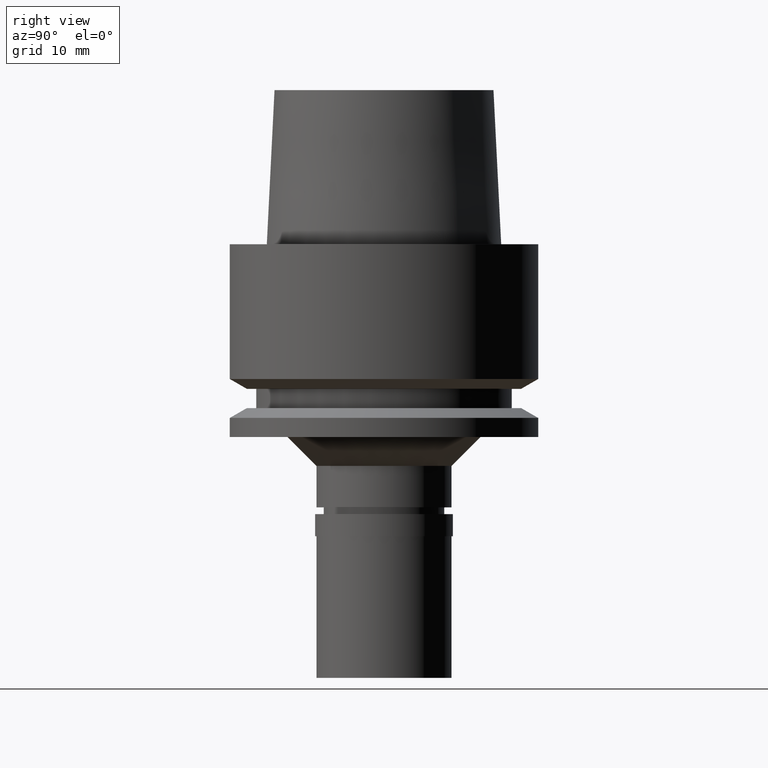
[diagram: clean part render]
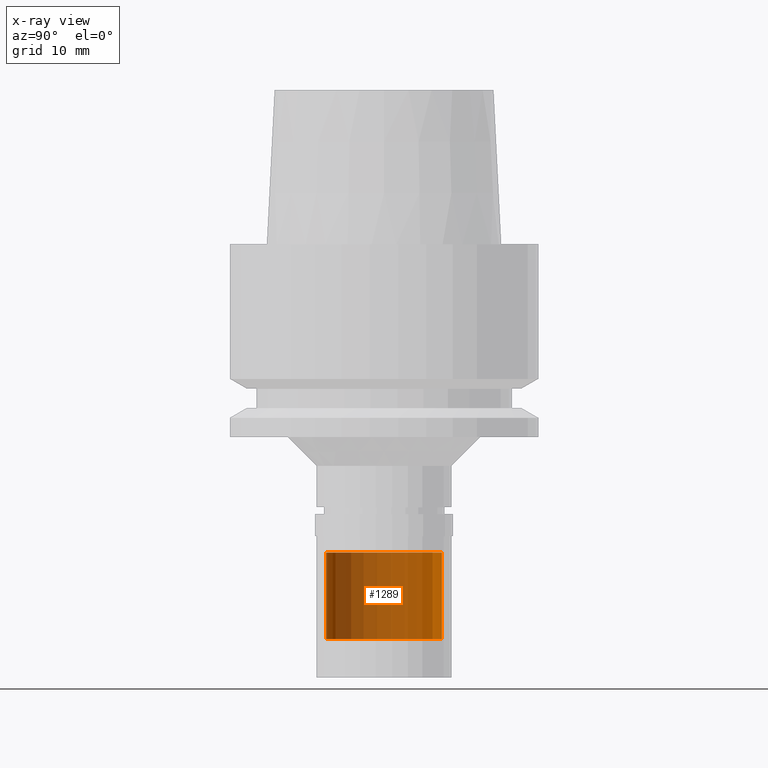
[diagram: x-ray — body ghosted, one internal face saturated and labeled with its STEP entity id]
A machine part, right view, then the same camera in x-ray: the body is ghosted and one INTERNAL B-rep face — a face not visible from any outside direction — is saturated and labeled: STEP entity #1289.
In plain terms, the highlighted cylindrical surface (partial cylindrical patch) has radius 6 mm, axis along (0, 0, 1).
Its self-contained STEP definition (entity closure, byte-faithful):
#35 = DIRECTION ( 'NONE',  ( 0.0000000000000000000, 0.0000000000000000000, -1.000000000000000000 ) ) ;
#145 = CARTESIAN_POINT ( 'NONE',  ( 0.0000000000000000000, -6.000000000000000000, -32.00000000000000000 ) ) ;
#192 = AXIS2_PLACEMENT_3D ( 'NONE', #543, #1980, #2353 ) ;
#339 = VERTEX_POINT ( 'NONE', #918 ) ;
#364 = CARTESIAN_POINT ( 'NONE',  ( 0.0000000000000000000, -6.000000000000000000, -41.00000000000000000 ) ) ;
#446 = DIRECTION ( 'NONE',  ( 0.0000000000000000000, 0.0000000000000000000, -1.000000000000000000 ) ) ;
#471 = EDGE_CURVE ( 'NONE', #1985, #1885, #1258, .T. ) ;
#507 = EDGE_CURVE ( 'NONE', #339, #1280, #652, .T. ) ;
#543 = CARTESIAN_POINT ( 'NONE',  ( 0.0000000000000000000, 0.0000000000000000000, -43.85000000000000142 ) ) ;
#627 = AXIS2_PLACEMENT_3D ( 'NONE', #2495, #2278, #2318 ) ;
#652 = LINE ( 'NONE', #1488, #1863 ) ;
#666 = ORIENTED_EDGE ( 'NONE', *, *, #1033, .T. ) ;
#808 = DIRECTION ( 'NONE',  ( 0.0000000000000000000, 0.0000000000000000000, 1.000000000000000000 ) ) ;
#918 = CARTESIAN_POINT ( 'NONE',  ( 0.0000000000000000000, 6.000000000000000000, -32.00000000000000000 ) ) ;
#961 = FACE_OUTER_BOUND ( 'NONE', #2013, .T. ) ;
#1019 = CARTESIAN_POINT ( 'NONE',  ( 0.0000000000000000000, 0.0000000000000000000, -41.00000000000000000 ) ) ;
#1033 = EDGE_CURVE ( 'NONE', #1280, #1885, #1999, .T. ) ;
#1065 = ORIENTED_EDGE ( 'NONE', *, *, #1584, .T. ) ;
#1098 = ORIENTED_EDGE ( 'NONE', *, *, #507, .T. ) ;
#1112 = CYLINDRICAL_SURFACE ( 'NONE', #192, 6.000000000000000000 ) ;
#1258 = LINE ( 'NONE', #1898, #2466 ) ;
#1280 = VERTEX_POINT ( 'NONE', #2624 ) ;
#1289 = ADVANCED_FACE ( 'NONE', ( #961 ), #1112, .T. ) ;
#1333 = AXIS2_PLACEMENT_3D ( 'NONE', #1019, #808, #1487 ) ;
#1487 = DIRECTION ( 'NONE',  ( 0.0000000000000000000, 1.000000000000000000, 0.0000000000000000000 ) ) ;
#1488 = CARTESIAN_POINT ( 'NONE',  ( 0.0000000000000000000, 6.000000000000000000, -32.00000000000000000 ) ) ;
#1584 = EDGE_CURVE ( 'NONE', #1985, #339, #2283, .T. ) ;
#1863 = VECTOR ( 'NONE', #446, 1000.000000000000000 ) ;
#1885 = VERTEX_POINT ( 'NONE', #364 ) ;
#1898 = CARTESIAN_POINT ( 'NONE',  ( 0.0000000000000000000, -6.000000000000000000, -32.00000000000000000 ) ) ;
#1980 = DIRECTION ( 'NONE',  ( 0.0000000000000000000, 0.0000000000000000000, 1.000000000000000000 ) ) ;
#1985 = VERTEX_POINT ( 'NONE', #145 ) ;
#1999 = CIRCLE ( 'NONE', #1333, 6.000000000000000000 ) ;
#2013 = EDGE_LOOP ( 'NONE', ( #666, #2121, #1065, #1098 ) ) ;
#2121 = ORIENTED_EDGE ( 'NONE', *, *, #471, .F. ) ;
#2278 = DIRECTION ( 'NONE',  ( 0.0000000000000000000, 0.0000000000000000000, -1.000000000000000000 ) ) ;
#2283 = CIRCLE ( 'NONE', #627, 6.000000000000000000 ) ;
#2318 = DIRECTION ( 'NONE',  ( 0.0000000000000000000, -1.000000000000000000, 0.0000000000000000000 ) ) ;
#2353 = DIRECTION ( 'NONE',  ( 0.0000000000000000000, 1.000000000000000000, 0.0000000000000000000 ) ) ;
#2466 = VECTOR ( 'NONE', #35, 1000.000000000000000 ) ;
#2495 = CARTESIAN_POINT ( 'NONE',  ( 0.0000000000000000000, 0.0000000000000000000, -32.00000000000000000 ) ) ;
#2624 = CARTESIAN_POINT ( 'NONE',  ( 0.0000000000000000000, 6.000000000000000000, -41.00000000000000000 ) ) ;